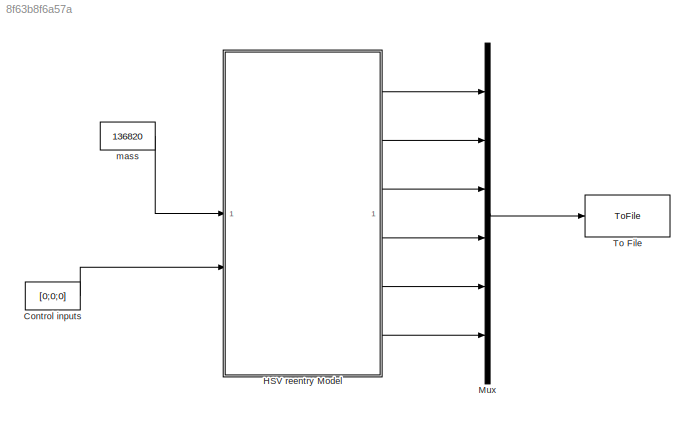
MODEL mdl_8f63b8f6a57a
KIND model
CONFIG AbsTol = auto
CONFIG EnableMultiTasking = on
CONFIG FixedStep = 0.02
CONFIG InitFcn = Init_AeroSpaceBlk
CONFIG MaxStep = auto
CONFIG MinStep = auto
CONFIG RelTol = 1e-3
CONFIG SampleTimeConstraint = Unconstrained
CONFIG SolverName = ode3
CONFIG StartTime = 0.0
CONFIG StopTime = 50.0
BLOCK [Constant] Control inputs
  Value = [0;0;0]
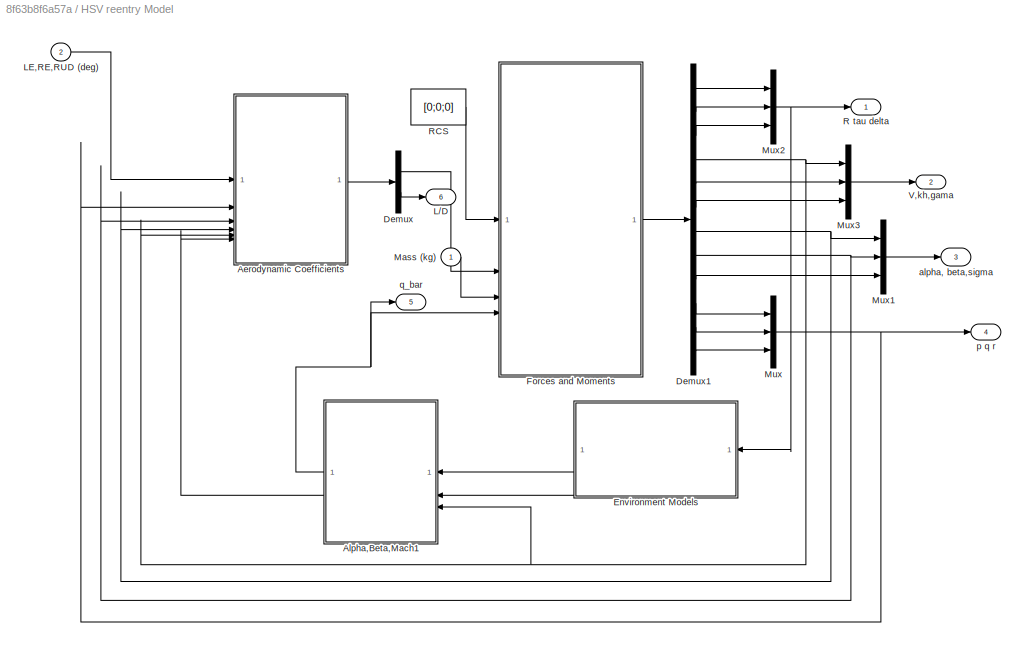
BLOCK [SubSystem] HSV reentry Model
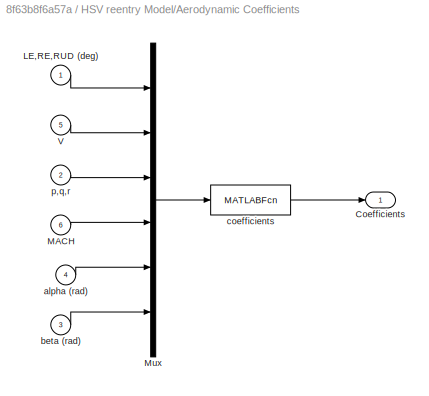
BLOCK [SubSystem] HSV reentry Model/Aerodynamic Coefficients
BLOCK [Outport] HSV reentry Model/Aerodynamic Coefficients/Coefficients
  InitialOutput = 0
BLOCK [Inport] HSV reentry Model/Aerodynamic Coefficients/LE,RE,RUD (deg)
BLOCK [Inport] HSV reentry Model/Aerodynamic Coefficients/MACH
  Port = 6
BLOCK [Mux] HSV reentry Model/Aerodynamic Coefficients/Mux
  DisplayOption = bar
  Inputs = 6
BLOCK [Inport] HSV reentry Model/Aerodynamic Coefficients/V
  Port = 5
  PortDimensions = 1
BLOCK [Inport] HSV reentry Model/Aerodynamic Coefficients/alpha (rad)
  Port = 4
BLOCK [Inport] HSV reentry Model/Aerodynamic Coefficients/beta (rad)
  Port = 3
BLOCK [MATLABFcn] HSV reentry Model/Aerodynamic Coefficients/coefficients
  MATLABFcn = coefficients_new
  Output1D = off
  OutputDimensions = 7
BLOCK [Inport] HSV reentry Model/Aerodynamic Coefficients/p,q,r
  Port = 2
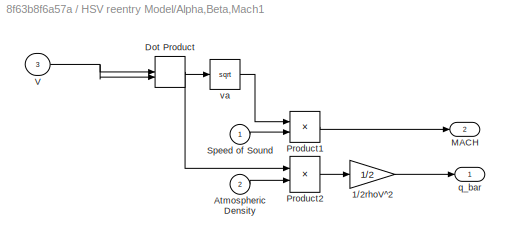
BLOCK [SubSystem] HSV reentry Model/Alpha,Beta,Mach1
  NameLocation = top
BLOCK [Gain] HSV reentry Model/Alpha,Beta,Mach1/1//2rhoV^2
  Gain = 1/2
  OutDataTypeStr = Inherit: Same as input
  ParamDataTypeStr = Inherit: Same as input
  SaturateOnIntegerOverflow = on
BLOCK [Inport] HSV reentry Model/Alpha,Beta,Mach1/Atmospheric Density
  Port = 2
BLOCK [DotProduct] HSV reentry Model/Alpha,Beta,Mach1/Dot Product
  OutDataTypeStr = Inherit: Inherit via internal rule
BLOCK [Outport] HSV reentry Model/Alpha,Beta,Mach1/MACH
  Port = 2
BLOCK [Product] HSV reentry Model/Alpha,Beta,Mach1/Product1
  InputSameDT = on
  Inputs = */
  OutDataTypeStr = Inherit: Same as first input
  SaturateOnIntegerOverflow = on
BLOCK [Product] HSV reentry Model/Alpha,Beta,Mach1/Product2
  InputSameDT = on
  OutDataTypeStr = Inherit: Same as first input
  SaturateOnIntegerOverflow = on
BLOCK [Inport] HSV reentry Model/Alpha,Beta,Mach1/Speed of Sound
BLOCK [Inport] HSV reentry Model/Alpha,Beta,Mach1/V
  Port = 3
  PortDimensions = 1
BLOCK [Outport] HSV reentry Model/Alpha,Beta,Mach1/q_bar
  InitialOutput = 0
BLOCK [Math] HSV reentry Model/Alpha,Beta,Mach1/va
  Operator = sqrt
  SignedPower = on
BLOCK [Demux] HSV reentry Model/Demux
  Outputs = [6;1]
BLOCK [Demux] HSV reentry Model/Demux1
  Outputs = 12
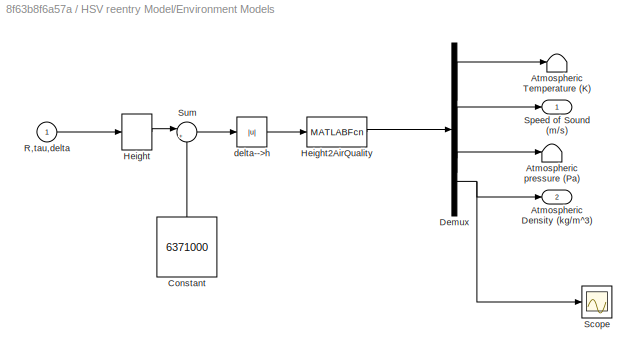
BLOCK [SubSystem] HSV reentry Model/Environment Models
BLOCK [Outport] HSV reentry Model/Environment Models/Atmospheric Density (kg//m^3)
  Port = 2
BLOCK [Terminator] HSV reentry Model/Environment Models/Atmospheric Temperature (K)
BLOCK [Terminator] HSV reentry Model/Environment Models/Atmospheric pressure (Pa)
BLOCK [Constant] HSV reentry Model/Environment Models/Constant
  NameLocation = right
  Value = 6371000
BLOCK [Demux] HSV reentry Model/Environment Models/Demux
  DisplayOption = none
BLOCK [Selector] HSV reentry Model/Environment Models/Height
  IndexOptions = Index vector (dialog)
  Indices = [1]
  InputPortWidth = 3
  OutputSizes = 1
BLOCK [MATLABFcn] HSV reentry Model/Environment Models/Height2AirQuality
  MATLABFcn = Sub_Height2AirQuality
  Output1D = off
  OutputDimensions = 4
  OutputSignalType = real
BLOCK [Inport] HSV reentry Model/Environment Models/R,tau,delta
  PortDimensions = 3
BLOCK [Scope] HSV reentry Model/Environment Models/Scope
  Floating = off
  NumInputPorts = 1
  ScopeSpecificationString = C++SS(StrPVP('Location','[188, 365, 512, 604]'),StrPVP('Open','off'),MxPVP('AxesTitles',54,'struct(''axes1'',''%<SignalLabel>'')'),StrPVP('ShowLegends','off'),StrPVP('SaveName','ScopeData1'),StrPVP('DataFormat','StructureWithTime'),StrPVP('BlockParamSampleTime','0'),StrPVP('ScrollMode','off'),StrPVP('LimitDataPoints','on'),StrPVP('Decimation','1'),StrPVP('BlockParamSampleInput','off'))
BLOCK [Outport] HSV reentry Model/Environment Models/Speed of Sound (m//s)
BLOCK [Sum] HSV reentry Model/Environment Models/Sum
  Inputs = |+-
BLOCK [Abs] HSV reentry Model/Environment Models/delta-->h
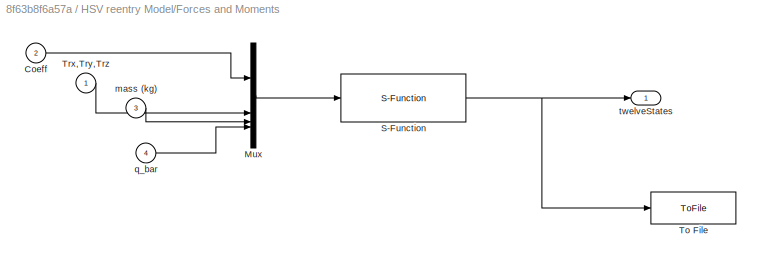
BLOCK [SubSystem] HSV reentry Model/Forces and Moments
BLOCK [Inport] HSV reentry Model/Forces and Moments/Coeff
  Port = 2
BLOCK [Mux] HSV reentry Model/Forces and Moments/Mux
  DisplayOption = bar
BLOCK [S-Function] HSV reentry Model/Forces and Moments/S-Function
  EnableBusSupport = off
  FunctionName = HSVmodel_m
  SFcnIsStateOwnerBlock = off
  SFunctionDeploymentMode = off
BLOCK [ToFile] HSV reentry Model/Forces and Moments/To File
  Filename = twelveStates.mat
  MatrixName = twelveStates
BLOCK [Inport] HSV reentry Model/Forces and Moments/Trx,Try,Trz
BLOCK [Inport] HSV reentry Model/Forces and Moments/mass (kg)
  Port = 3
BLOCK [Inport] HSV reentry Model/Forces and Moments/q_bar
  Port = 4
BLOCK [Outport] HSV reentry Model/Forces and Moments/twelveStates
BLOCK [Outport] HSV reentry Model/L//D
  InitialOutput = 0
  Port = 6
BLOCK [Inport] HSV reentry Model/LE,RE,RUD (deg)
  Port = 2
BLOCK [Inport] HSV reentry Model/Mass (kg)
BLOCK [Mux] HSV reentry Model/Mux
  DisplayOption = bar
  Inputs = 3
BLOCK [Mux] HSV reentry Model/Mux1
  DisplayOption = bar
  Inputs = 3
BLOCK [Mux] HSV reentry Model/Mux2
  DisplayOption = bar
  Inputs = 3
BLOCK [Mux] HSV reentry Model/Mux3
  DisplayOption = bar
  Inputs = 3
BLOCK [Outport] HSV reentry Model/R tau delta
  InitialOutput = 0
BLOCK [Constant] HSV reentry Model/RCS
  Value = [0;0;0]
BLOCK [Outport] HSV reentry Model/V,kh,gama
  InitialOutput = 0
  Port = 2
BLOCK [Outport] HSV reentry Model/alpha, beta,sigma
  InitialOutput = 0
  Port = 3
BLOCK [Outport] HSV reentry Model/p q r
  InitialOutput = 0
  Port = 4
BLOCK [Outport] HSV reentry Model/q_bar
  InitialOutput = 0
  Port = 5
BLOCK [Mux] Mux
  DisplayOption = bar
  Inputs = 6
BLOCK [ToFile] To File
  Filename = Allstates.mat
  MatrixName = Allstates
BLOCK [Constant] mass 
  Value = 136820
LINE Control inputs:1 -> HSV reentry Model:2
LINE HSV reentry Model/Aerodynamic Coefficients/LE,RE,RUD (deg):1 -> HSV reentry Model/Aerodynamic Coefficients/Mux:1
LINE HSV reentry Model/Aerodynamic Coefficients/MACH:1 -> HSV reentry Model/Aerodynamic Coefficients/Mux:4
LINE HSV reentry Model/Aerodynamic Coefficients/Mux:1 -> HSV reentry Model/Aerodynamic Coefficients/coefficients:1
LINE HSV reentry Model/Aerodynamic Coefficients/V:1 -> HSV reentry Model/Aerodynamic Coefficients/Mux:2
LINE HSV reentry Model/Aerodynamic Coefficients/alpha (rad):1 -> HSV reentry Model/Aerodynamic Coefficients/Mux:5
LINE HSV reentry Model/Aerodynamic Coefficients/beta (rad):1 -> HSV reentry Model/Aerodynamic Coefficients/Mux:6
LINE HSV reentry Model/Aerodynamic Coefficients/coefficients:1 -> HSV reentry Model/Aerodynamic Coefficients/Coefficients:1
LINE HSV reentry Model/Aerodynamic Coefficients/p,q,r:1 -> HSV reentry Model/Aerodynamic Coefficients/Mux:3
LINE HSV reentry Model/Aerodynamic Coefficients:1 -> HSV reentry Model/Demux:1
LINE HSV reentry Model/Alpha,Beta,Mach1/1//2rhoV^2:1 -> HSV reentry Model/Alpha,Beta,Mach1/q_bar:1
LINE HSV reentry Model/Alpha,Beta,Mach1/Atmospheric Density:1 -> HSV reentry Model/Alpha,Beta,Mach1/Product2:2
NET HSV reentry Model/Alpha,Beta,Mach1/Dot Product:1 -> HSV reentry Model/Alpha,Beta,Mach1/Product2:1, HSV reentry Model/Alpha,Beta,Mach1/va:1
LINE HSV reentry Model/Alpha,Beta,Mach1/Product1:1 -> HSV reentry Model/Alpha,Beta,Mach1/MACH:1
LINE HSV reentry Model/Alpha,Beta,Mach1/Product2:1 -> HSV reentry Model/Alpha,Beta,Mach1/1//2rhoV^2:1
LINE HSV reentry Model/Alpha,Beta,Mach1/Speed of Sound:1 -> HSV reentry Model/Alpha,Beta,Mach1/Product1:2
NET HSV reentry Model/Alpha,Beta,Mach1/V:1 -> HSV reentry Model/Alpha,Beta,Mach1/Dot Product:1, HSV reentry Model/Alpha,Beta,Mach1/Dot Product:2
LINE HSV reentry Model/Alpha,Beta,Mach1/va:1 -> HSV reentry Model/Alpha,Beta,Mach1/Product1:1
NET HSV reentry Model/Alpha,Beta,Mach1:1 -> HSV reentry Model/Forces and Moments:4, HSV reentry Model/q_bar:1
LINE HSV reentry Model/Alpha,Beta,Mach1:2 -> HSV reentry Model/Aerodynamic Coefficients:6
LINE HSV reentry Model/Demux1:1 -> HSV reentry Model/Mux2:1
LINE HSV reentry Model/Demux1:10 -> HSV reentry Model/Mux:1
LINE HSV reentry Model/Demux1:11 -> HSV reentry Model/Mux:2
LINE HSV reentry Model/Demux1:12 -> HSV reentry Model/Mux:3
LINE HSV reentry Model/Demux1:2 -> HSV reentry Model/Mux2:2
LINE HSV reentry Model/Demux1:3 -> HSV reentry Model/Mux2:3
NET HSV reentry Model/Demux1:4 -> HSV reentry Model/Aerodynamic Coefficients:5, HSV reentry Model/Alpha,Beta,Mach1:3, HSV reentry Model/Mux3:1
LINE HSV reentry Model/Demux1:5 -> HSV reentry Model/Mux3:2
LINE HSV reentry Model/Demux1:6 -> HSV reentry Model/Mux3:3
NET HSV reentry Model/Demux1:7 -> HSV reentry Model/Aerodynamic Coefficients:4, HSV reentry Model/Mux1:1
NET HSV reentry Model/Demux1:8 -> HSV reentry Model/Aerodynamic Coefficients:3, HSV reentry Model/Mux1:2
LINE HSV reentry Model/Demux1:9 -> HSV reentry Model/Mux1:3
LINE HSV reentry Model/Demux:1 -> HSV reentry Model/Forces and Moments:2
LINE HSV reentry Model/Demux:2 -> HSV reentry Model/L//D:1
LINE HSV reentry Model/Environment Models/Constant:1 -> HSV reentry Model/Environment Models/Sum:2
LINE HSV reentry Model/Environment Models/Demux:1 -> HSV reentry Model/Environment Models/Atmospheric Temperature (K):1
LINE HSV reentry Model/Environment Models/Demux:2 -> HSV reentry Model/Environment Models/Speed of Sound (m//s):1
LINE HSV reentry Model/Environment Models/Demux:3 -> HSV reentry Model/Environment Models/Atmospheric pressure (Pa):1
NET HSV reentry Model/Environment Models/Demux:4 -> HSV reentry Model/Environment Models/Atmospheric Density (kg//m^3):1, HSV reentry Model/Environment Models/Scope:1
LINE HSV reentry Model/Environment Models/Height2AirQuality:1 -> HSV reentry Model/Environment Models/Demux:1
LINE HSV reentry Model/Environment Models/Height:1 -> HSV reentry Model/Environment Models/Sum:1
LINE HSV reentry Model/Environment Models/R,tau,delta:1 -> HSV reentry Model/Environment Models/Height:1
LINE HSV reentry Model/Environment Models/Sum:1 -> HSV reentry Model/Environment Models/delta-->h:1
LINE HSV reentry Model/Environment Models/delta-->h:1 -> HSV reentry Model/Environment Models/Height2AirQuality:1
LINE HSV reentry Model/Environment Models:1 -> HSV reentry Model/Alpha,Beta,Mach1:1
LINE HSV reentry Model/Environment Models:2 -> HSV reentry Model/Alpha,Beta,Mach1:2
LINE HSV reentry Model/Forces and Moments/Coeff:1 -> HSV reentry Model/Forces and Moments/Mux:1
LINE HSV reentry Model/Forces and Moments/Mux:1 -> HSV reentry Model/Forces and Moments/S-Function:1
NET HSV reentry Model/Forces and Moments/S-Function:1 -> HSV reentry Model/Forces and Moments/To File:1, HSV reentry Model/Forces and Moments/twelveStates:1
LINE HSV reentry Model/Forces and Moments/Trx,Try,Trz:1 -> HSV reentry Model/Forces and Moments/Mux:2
LINE HSV reentry Model/Forces and Moments/mass (kg):1 -> HSV reentry Model/Forces and Moments/Mux:3
LINE HSV reentry Model/Forces and Moments/q_bar:1 -> HSV reentry Model/Forces and Moments/Mux:4
LINE HSV reentry Model/Forces and Moments:1 -> HSV reentry Model/Demux1:1
LINE HSV reentry Model/LE,RE,RUD (deg):1 -> HSV reentry Model/Aerodynamic Coefficients:1
LINE HSV reentry Model/Mass (kg):1 -> HSV reentry Model/Forces and Moments:3
LINE HSV reentry Model/Mux1:1 -> HSV reentry Model/alpha, beta,sigma:1
NET HSV reentry Model/Mux2:1 -> HSV reentry Model/Environment Models:1, HSV reentry Model/R tau delta:1
LINE HSV reentry Model/Mux3:1 -> HSV reentry Model/V,kh,gama:1
NET HSV reentry Model/Mux:1 -> HSV reentry Model/Aerodynamic Coefficients:2, HSV reentry Model/p q r:1
LINE HSV reentry Model/RCS:1 -> HSV reentry Model/Forces and Moments:1
LINE HSV reentry Model:1 -> Mux:1
LINE HSV reentry Model:2 -> Mux:2
LINE HSV reentry Model:3 -> Mux:3
LINE HSV reentry Model:4 -> Mux:4
LINE HSV reentry Model:5 -> Mux:5
LINE HSV reentry Model:6 -> Mux:6
LINE Mux:1 -> To File:1
LINE mass :1 -> HSV reentry Model:1
note: NET lines group one-source signal fan-out (src -> all destinations, sorted); 1:1 wires keep LINE
